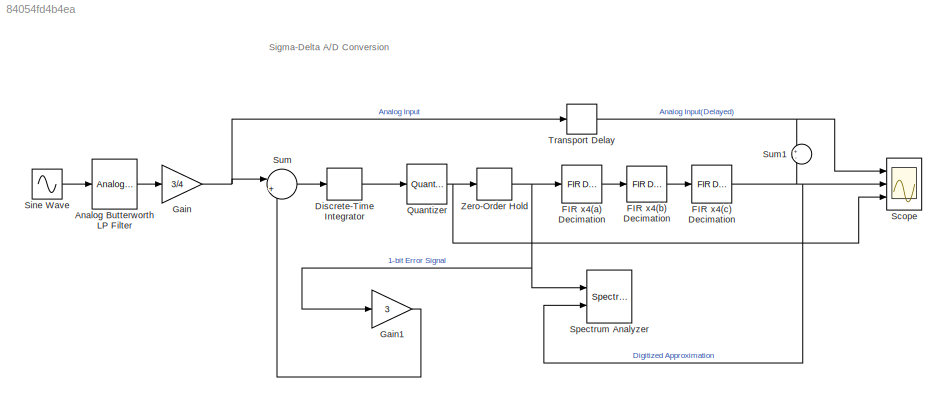
MODEL slx_84054fd4b4ea
KIND model
CONFIG AbsTol = 1e-6
CONFIG FixedStep = auto
CONFIG MaxStep = 1/512000
CONFIG MinStep = auto
CONFIG RelTol = 1e-3
CONFIG SampleTimeConstraint = Unconstrained
CONFIG Solver = ode5
CONFIG SolverMode = SingleTasking
CONFIG SolverName = ode5
CONFIG StartTime = 0.0
CONFIG StopTime = 0.1
BLOCK [Reference] Analog Butterworth LP Filter  REF=dsparch4/Analog
Filter Design
  Ports = [1, 1]
  SourceBlock = dsparch4/Analog\nFilter Design
  SourceType = Analog Filter Design
BLOCK [DiscreteIntegrator] Discrete-Time Integrator
  ICPrevOutput = DiscIntNeverNeededParam
  ICPrevScaledInput = DiscIntNeverNeededParam
  InitialConditionSetting = State (most efficient)
  Ports = [1, 1]
  SampleTime = 1/512000
BLOCK [Reference] FIR x4(a) Decimation  REF=dspmlti4/FIR
Decimation
  Ports = [1, 1]
  SourceBlock = dspmlti4/FIR\nDecimation
  SourceType = FIR Decimation
  UserDataPersistent = on
BLOCK [Reference] FIR x4(b) Decimation  REF=dspmlti4/FIR
Decimation
  Ports = [1, 1]
  SourceBlock = dspmlti4/FIR\nDecimation
  SourceType = FIR Decimation
  UserDataPersistent = on
BLOCK [Reference] FIR x4(c) Decimation  REF=dspmlti4/FIR
Decimation
  Ports = [1, 1]
  SourceBlock = dspmlti4/FIR\nDecimation
  SourceType = FIR Decimation
  UserDataPersistent = on
BLOCK [Gain] Gain
  Gain = 3/4
BLOCK [Gain] Gain1
  Gain = 3
BLOCK [Quantizer] Quantizer
BLOCK [Scope] Scope
  NumInputPorts = 3
  Ports = [3]
  ScopeSpecificationString = Simulink.scopes.TimeScopeBlockCfg('CurrentConfiguration', extmgr.ConfigurationSet(extmgr.Configuration('Core','General UI',true),extmgr.Configuration('Core','Source UI',true),extmgr.Configuration('Sources','WiredSimulink',true,'DataLoggingVariableName','ScopeData1','DataLoggingSaveFormat','StructureWithTime','DataLoggingMaxPoints','15000','DataLoggingLimitDataPoints',true,'DataLoggingDecimation','...<+3086ch>
BLOCK [Sin] Sine Wave
  Frequency = 2*pi*1000
  Ports = [0, 1]
  SampleTime = 1/512000
BLOCK [SpectrumAnalyzer] Spectrum Analyzer
  NumInputPorts = 2
  Ports = [2]
  ScopeSpecificationString = spbscopes.SpectrumAnalyzerBlockCfg('CurrentConfiguration', extmgr.ConfigurationSet(extmgr.Configuration('Core','General UI',true),extmgr.Configuration('Core','Source UI',true),extmgr.Configuration('Sources','WiredSimulink',true),extmgr.Configuration('Visuals','Spectrum',true,'AxesProperties',struct('Color',[0 0 0],'XColor',[0.686274509803922 0.686274509803922 0.686274509803922],'YColor',[0.6862745...<+1301ch>
BLOCK [Sum] Sum
  IconShape = round
  Inputs = |+-
  Ports = [2, 1]
BLOCK [Sum] Sum1
  IconShape = round
  Inputs = +-
  Ports = [2, 1]
BLOCK [TransportDelay] Transport Delay
  DelayTime = 336/512000
  Ports = [1, 1]
BLOCK [ZeroOrderHold] Zero-Order Hold
  SampleTime = 1/512000
ANNOTATION (root): Sigma-Delta A/D Conversion
LINE Analog Butterworth LP Filter:1 -> Gain:1
LINE Discrete-Time Integrator:1 -> Quantizer:1
LINE FIR x4(a) Decimation:1 -> FIR x4(b) Decimation:1
LINE FIR x4(b) Decimation:1 -> FIR x4(c) Decimation:1
NET FIR x4(c) Decimation:1 -> Scope:2, Spectrum Analyzer:2, Sum1:2
LINE Gain1:1 -> Sum:2
NET Gain:1 -> Sum:1, Transport Delay:1
NET Quantizer:1 -> Scope:3, Zero-Order Hold:1
LINE Sine Wave:1 -> Analog Butterworth LP Filter:1
LINE Sum:1 -> Discrete-Time Integrator:1
NET Transport Delay:1 -> Scope:1, Sum1:1
NET Zero-Order Hold:1 -> FIR x4(a) Decimation:1, Gain1:1, Spectrum Analyzer:1
note: NET lines group one-source signal fan-out (src -> all destinations, sorted); 1:1 wires keep LINE
